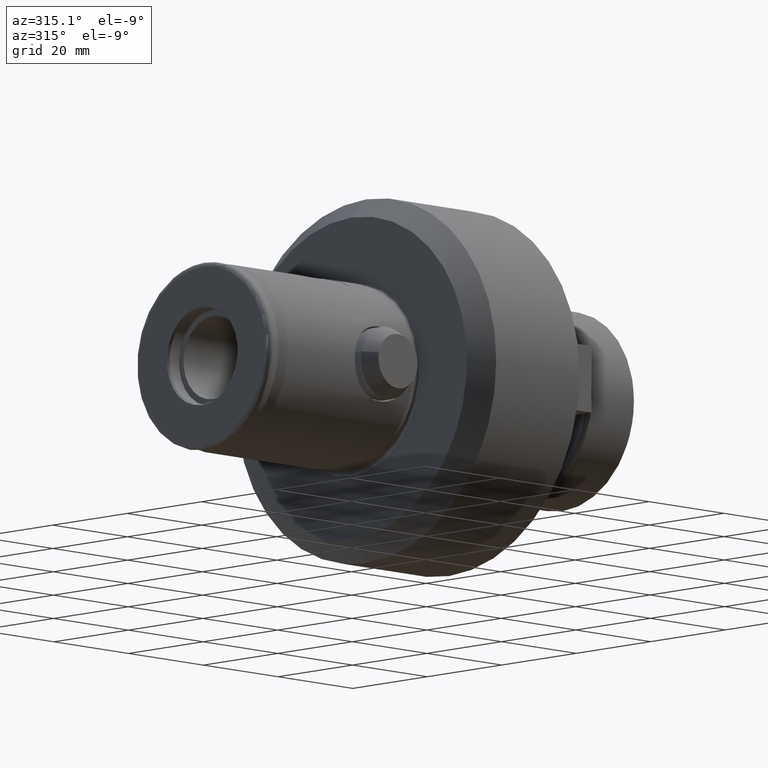
[diagram: clean part render]
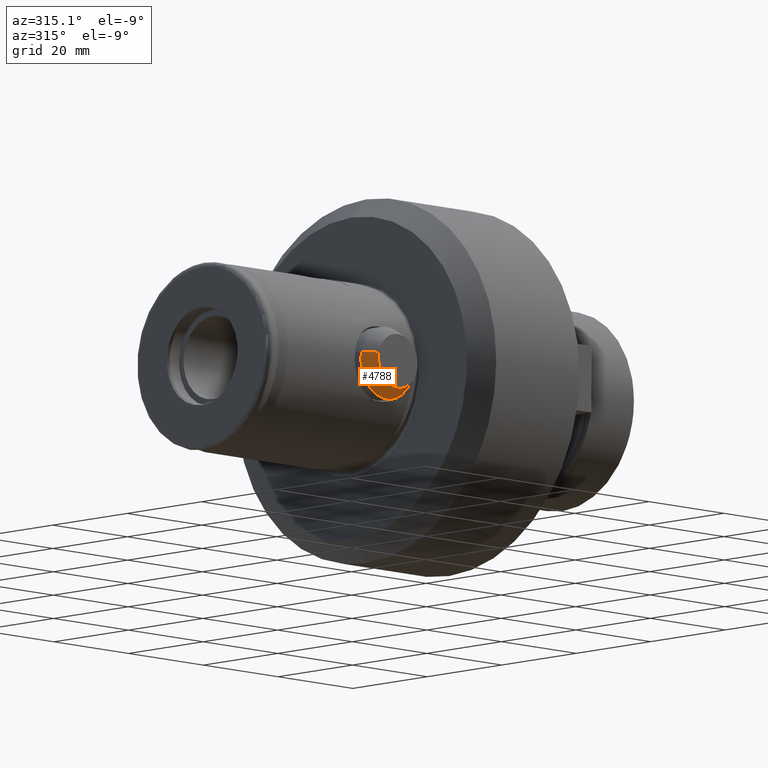
[diagram: same view with one face highlighted and labeled with its STEP entity id]
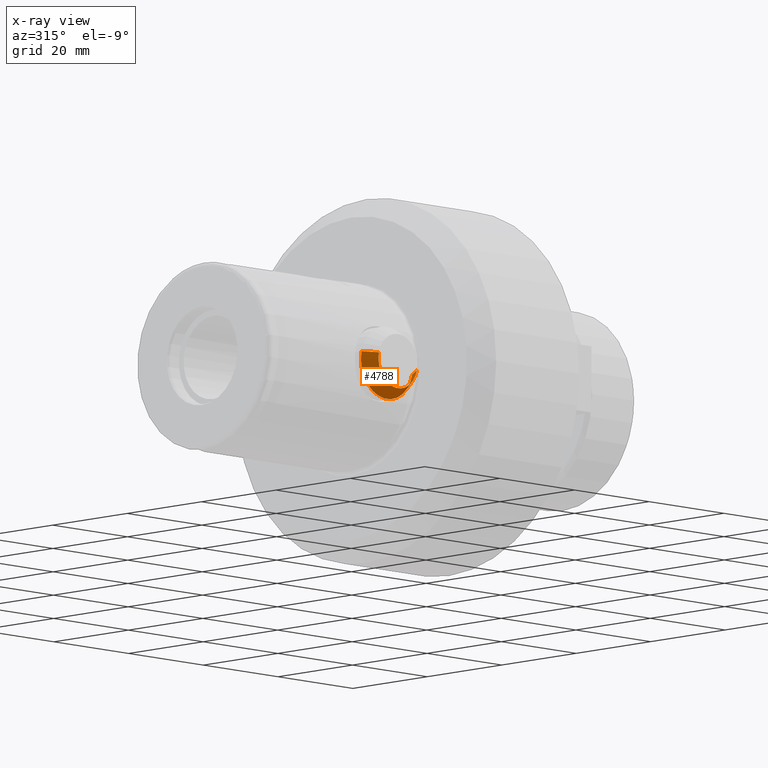
[diagram: x-ray of the same camera — body ghosted, the highlighted face saturated]
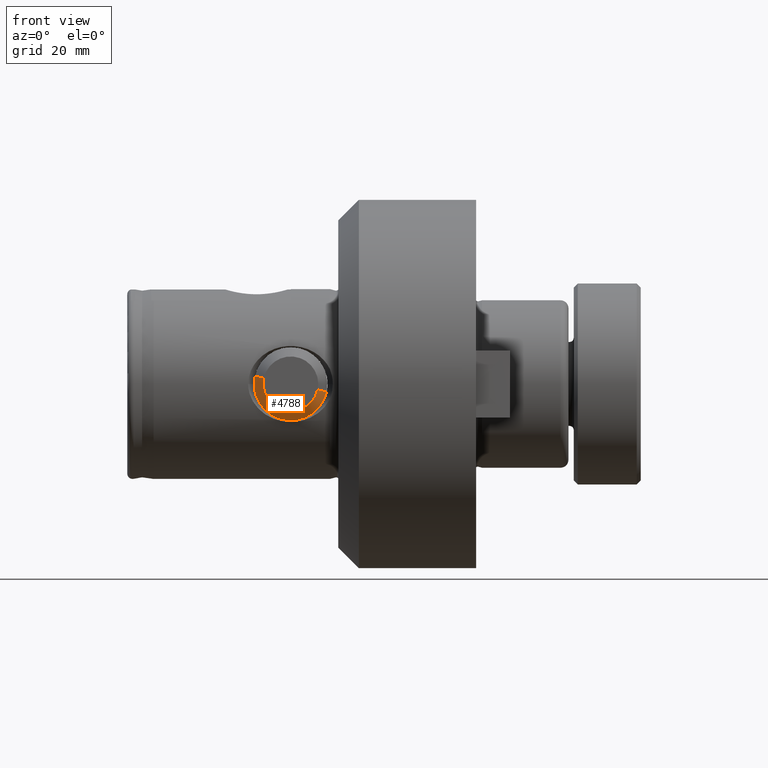
[diagram: same view with one face highlighted and labeled with its STEP entity id]
A machine part, auxiliary view. The second image highlights one B-rep face of the part: STEP entity #4788.
The next image is the same camera in x-ray: the body ghosted, the highlighted face saturated — about 0% of this face is hidden behind the body in this view.
A second angle (front view) of the same face is appended — the face is thin or edge-on in the first view.
In plain terms, the highlighted conical surface has half-angle 30 deg.
Its self-contained STEP definition (entity closure, byte-faithful):
#224 = CIRCLE ( 'NONE', #6512, 5.217949192431164300 ) ;
#479 = DIRECTION ( 'NONE',  ( 0.0000000000000000000, -5.551115123125737700E-017, -1.000000000000000000 ) ) ;
#917 = VECTOR ( 'NONE', #7028, 1000.000000000000000 ) ;
#1655 = CONICAL_SURFACE ( 'NONE', #5857, 6.950000000000056100, 0.5235987755982966000 ) ;
#1955 = LINE ( 'NONE', #2848, #4561 ) ;
#2392 = FACE_OUTER_BOUND ( 'NONE', #4844, .T. ) ;
#2535 = CARTESIAN_POINT ( 'NONE',  ( 0.0000000000000000000, 0.0000000000000000000, 0.0000000000000000000 ) ) ;
#2848 = CARTESIAN_POINT ( 'NONE',  ( 3.000000000000016400, -3.858025010572419100E-016, -6.950000000000056100 ) ) ;
#2926 = EDGE_CURVE ( 'NONE', #6452, #3234, #224, .T. ) ;
#3234 = VERTEX_POINT ( 'NONE', #6846 ) ;
#4277 = AXIS2_PLACEMENT_3D ( 'NONE', #5981, #4509, #6536 ) ;
#4296 = EDGE_CURVE ( 'NONE', #6687, #5088, #4799, .T. ) ;
#4396 = CARTESIAN_POINT ( 'NONE',  ( 3.000000000000016400, 1.236932026464659300E-015, 6.950000000000056100 ) ) ;
#4509 = DIRECTION ( 'NONE',  ( 1.000000000000000000, -8.378013236344267000E-032, -6.171883090740398700E-032 ) ) ;
#4561 = VECTOR ( 'NONE', #7565, 1000.000000000000000 ) ;
#4788 = ADVANCED_FACE ( 'NONE', ( #2392 ), #1655, .T. ) ;
#4799 = CIRCLE ( 'NONE', #4277, 6.950000000000056100 ) ;
#4844 = EDGE_LOOP ( 'NONE', ( #7162, #8275, #7191, #5897 ) ) ;
#5088 = VERTEX_POINT ( 'NONE', #7497 ) ;
#5131 = CARTESIAN_POINT ( 'NONE',  ( 3.220457238910817200E-031, 1.082800435432570000E-015, 5.217949192431122500 ) ) ;
#5178 = DIRECTION ( 'NONE',  ( -1.000000000000000000, 8.378013236344267000E-032, 6.171883090740398700E-032 ) ) ;
#5291 = EDGE_CURVE ( 'NONE', #6452, #5088, #6048, .T. ) ;
#5820 = DIRECTION ( 'NONE',  ( 1.000000000000000000, -8.378013236344267000E-032, -6.171883090740398700E-032 ) ) ;
#5857 = AXIS2_PLACEMENT_3D ( 'NONE', #8429, #5820, #479 ) ;
#5897 = ORIENTED_EDGE ( 'NONE', *, *, #6218, .F. ) ;
#5905 = DIRECTION ( 'NONE',  ( 2.465190328815642200E-032, -5.551115123125738300E-017, -1.000000000000000000 ) ) ;
#5981 = CARTESIAN_POINT ( 'NONE',  ( 3.000000000000016400, 0.0000000000000000000, 0.0000000000000000000 ) ) ;
#6048 = LINE ( 'NONE', #4396, #917 ) ;
#6218 = EDGE_CURVE ( 'NONE', #3234, #6687, #1955, .T. ) ;
#6452 = VERTEX_POINT ( 'NONE', #5131 ) ;
#6512 = AXIS2_PLACEMENT_3D ( 'NONE', #2535, #5178, #5905 ) ;
#6536 = DIRECTION ( 'NONE',  ( 0.0000000000000000000, -5.551115123125737700E-017, -1.000000000000000000 ) ) ;
#6687 = VERTEX_POINT ( 'NONE', #6762 ) ;
#6762 = CARTESIAN_POINT ( 'NONE',  ( 3.000000000000016400, -6.473566879556991300E-015, -6.950000000000000200 ) ) ;
#6846 = CARTESIAN_POINT ( 'NONE',  ( 1.286323788543269600E-031, -2.896543667380636900E-016, -5.217949192431164300 ) ) ;
#7028 = DIRECTION ( 'NONE',  ( 0.8660254037844380400, 8.898791557299647500E-017, 0.5000000000000010000 ) ) ;
#7162 = ORIENTED_EDGE ( 'NONE', *, *, #2926, .F. ) ;
#7191 = ORIENTED_EDGE ( 'NONE', *, *, #4296, .F. ) ;
#7497 = CARTESIAN_POINT ( 'NONE',  ( 3.000000000000016400, -6.553091402849945300E-015, 6.950000000000000200 ) ) ;
#7565 = DIRECTION ( 'NONE',  ( 0.8660254037844380400, -2.775557561562882400E-017, -0.5000000000000010000 ) ) ;
#8275 = ORIENTED_EDGE ( 'NONE', *, *, #5291, .T. ) ;
#8429 = CARTESIAN_POINT ( 'NONE',  ( 3.000000000000016400, 0.0000000000000000000, 0.0000000000000000000 ) ) ;